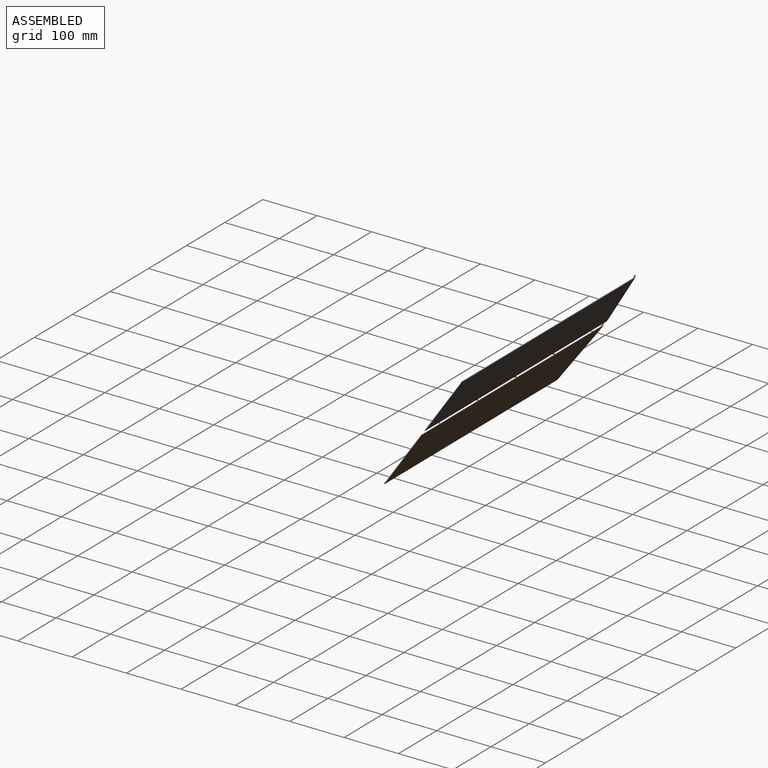
[diagram: assembled view]
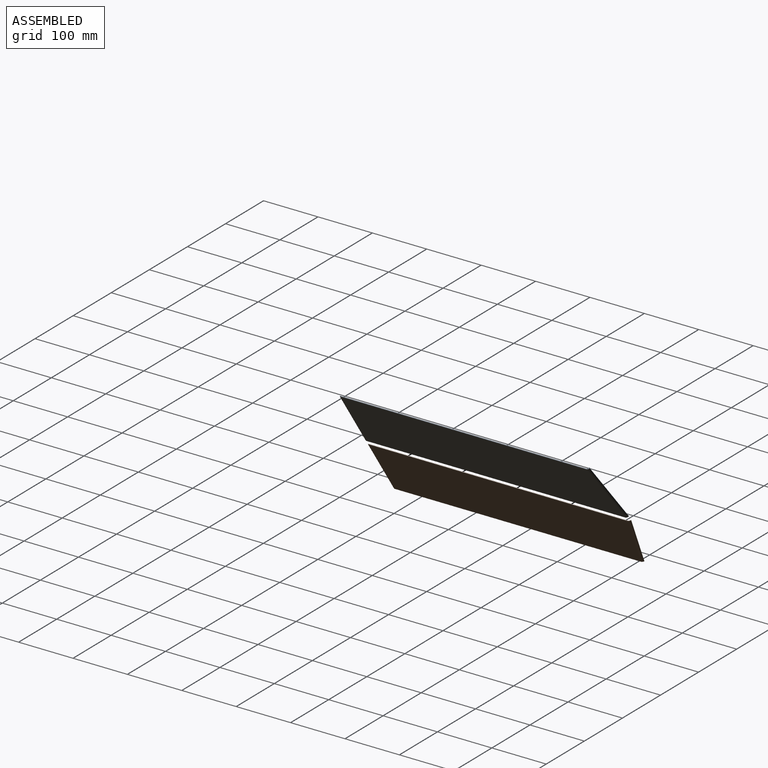
[diagram: assembled view, second angle]
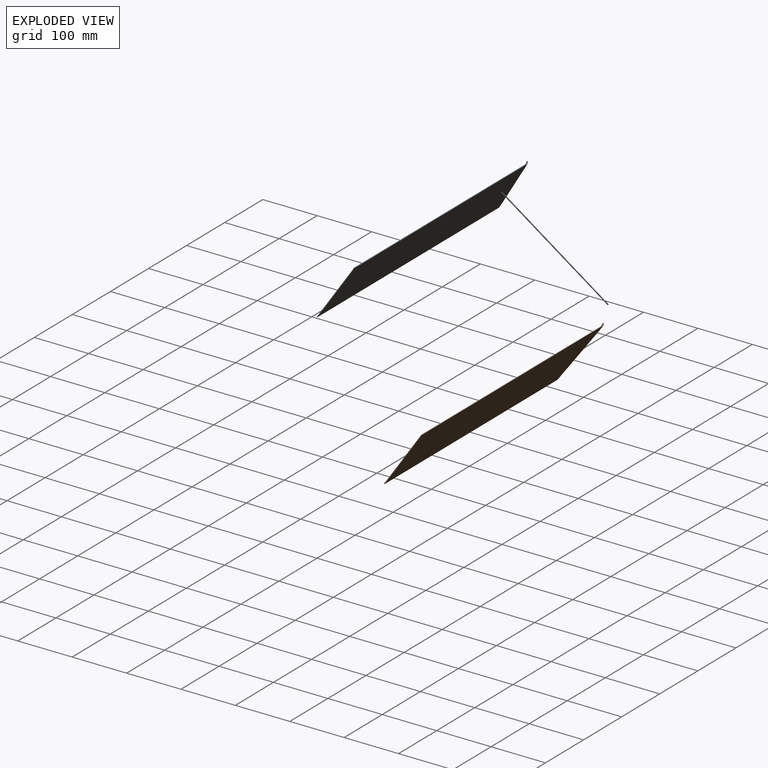
[diagram: exploded view]
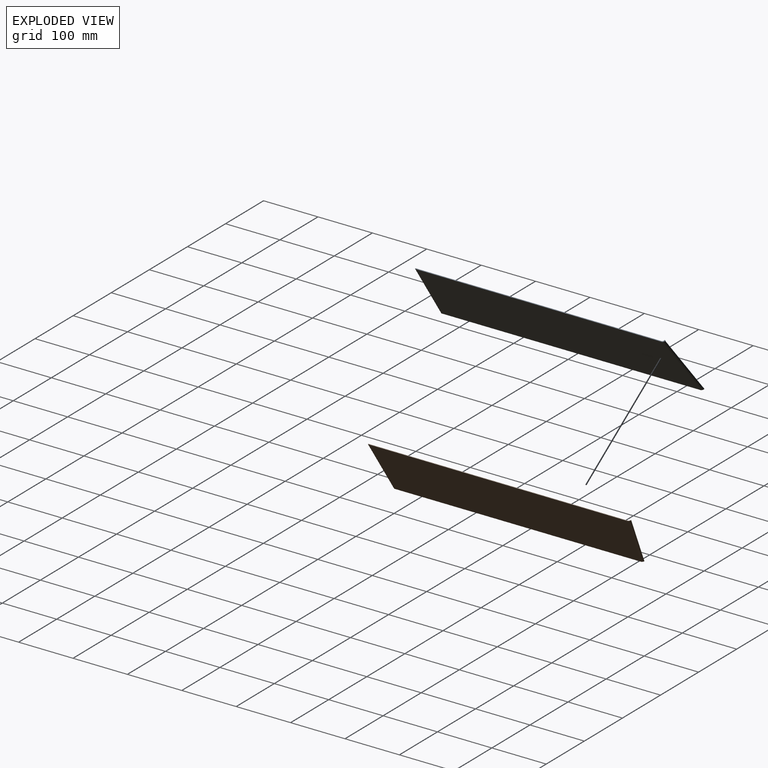
[diagram: exploded view, second angle]
ASSEMBLY  parts=2 mates=2
PART A: 14 faces, bbox 28.5x482.2x119.6 mm
  f0: plane 457.95x4.15mm, normal (0,0,1), area 535.8mm2, adj f1,f3,f7,f8,f12,f13
  f1: plane 476.25x119.13mm, normal (0.98,0,0.2), area 56584.9mm2, adj f0,f2,f6,f8,f12
  f2: plane 481.83x4.07mm, normal (0,0,-1), area 492.5mm2, adj f1,f5,f6,f10,f12,f13
  f3: plane 452.12x2.52mm, normal (-1,0,0), area 1141.2mm2, adj f0,f4,f7,f12
  f4: plane 457.5x3.65mm, normal (0,0,-1), area 302.6mm2, adj f3,f5,f7,f9,f11,f12,f13
  f5: plane 476.25x116.6mm, normal (-0.98,0,-0.2), area 55411.9mm2, adj f2,f4,f9,f10,f12
  f6: cone r=6.35mm half-angle=11.5deg, axis (0,0,-1), area 43.8mm2, adj f1,f2,f8,f13
  f7: cylinder r=5.08mm len=4.63mm, axis (0,0,1), area 14.7mm2, adj f0,f3,f4,f13
  f8: cylinder r=5.08mm len=112.92mm, axis (0.2,0.2,-0.96), area 668mm2, adj f0,f1,f6,f13
  f9: cylinder r=4.08mm len=111.51mm, axis (0.2,0.2,-0.96), area 574.6mm2, adj f4,f5,f10,f11,f13
  f10: cone r=5.37mm half-angle=11.5deg, axis (0,0,-1), area 37.2mm2, adj f2,f5,f9,f13
  f11: cylinder r=6.08mm len=3.33mm, axis (0,0,1), area 4.7mm2, adj f4,f9,f13
  f12: plane 119.13x25.4mm, normal (0,-1,0), area 122.6mm2, adj f0,f1,f2,f3,f4,f5
  f13: plane 119.22x25.17mm, normal (-0.71,0.71,0), area 136.9mm2, adj f0,f2,f4,f6,f7,f8,f9,f10
PART B: 14 faces, bbox 482.2x28.5x119.6 mm
  f0: plane 457.95x4.15mm, normal (0,0,1), area 535.8mm2, adj f1,f3,f7,f8,f12,f13
  f1: plane 476.25x119.13mm, normal (0,0.98,0.2), area 56584.9mm2, adj f0,f2,f6,f8,f12
  f2: plane 481.83x4.07mm, normal (0,0,-1), area 492.5mm2, adj f1,f5,f6,f10,f12,f13
  f3: plane 452.12x2.52mm, normal (0,-1,0), area 1141.2mm2, adj f0,f4,f7,f12
  f4: plane 457.5x3.65mm, normal (0,0,-1), area 302.6mm2, adj f3,f5,f7,f9,f11,f12,f13
  f5: plane 476.25x116.6mm, normal (0,-0.98,-0.2), area 55411.9mm2, adj f2,f4,f9,f10,f12
  f6: cone r=6.35mm half-angle=11.5deg, axis (0,0,-1), area 43.8mm2, adj f1,f2,f8,f13
  f7: cylinder r=5.08mm len=4.63mm, axis (0,0,1), area 14.7mm2, adj f0,f3,f4,f13
  f8: cylinder r=5.08mm len=112.92mm, axis (0.2,0.2,-0.96), area 668mm2, adj f0,f1,f6,f13
  f9: cylinder r=4.08mm len=111.51mm, axis (0.2,0.2,-0.96), area 574.6mm2, adj f4,f5,f10,f11,f13
  f10: cone r=5.37mm half-angle=11.5deg, axis (0,0,-1), area 37.2mm2, adj f2,f5,f9,f13
  f11: cylinder r=6.08mm len=3.33mm, axis (0,0,1), area 4.7mm2, adj f4,f9,f13
  f12: plane 119.13x25.4mm, normal (-1,0,0), area 122.6mm2, adj f0,f1,f2,f3,f4,f5
  f13: plane 119.22x25.17mm, normal (0.71,-0.71,0), area 136.9mm2, adj f0,f2,f4,f6,f7,f8,f9,f10
PLACE A rot(axis=(0,1,0),46deg) t=(31.58,-164.4,184.93)mm
PLACE B rot(axis=(-0.7,-0.7,0.14),163.8deg) t=(-315.96,-9.46,-52.68)mm
MATE planar B.f12 <-> A.f12  axis (0,-1,0) through (75.78,-240.09,-145.12)mm
MATE planar A.f5 <-> B.f5  axis (-0.82,0,0.57) through (148.99,-7.2,-37.72)mm
